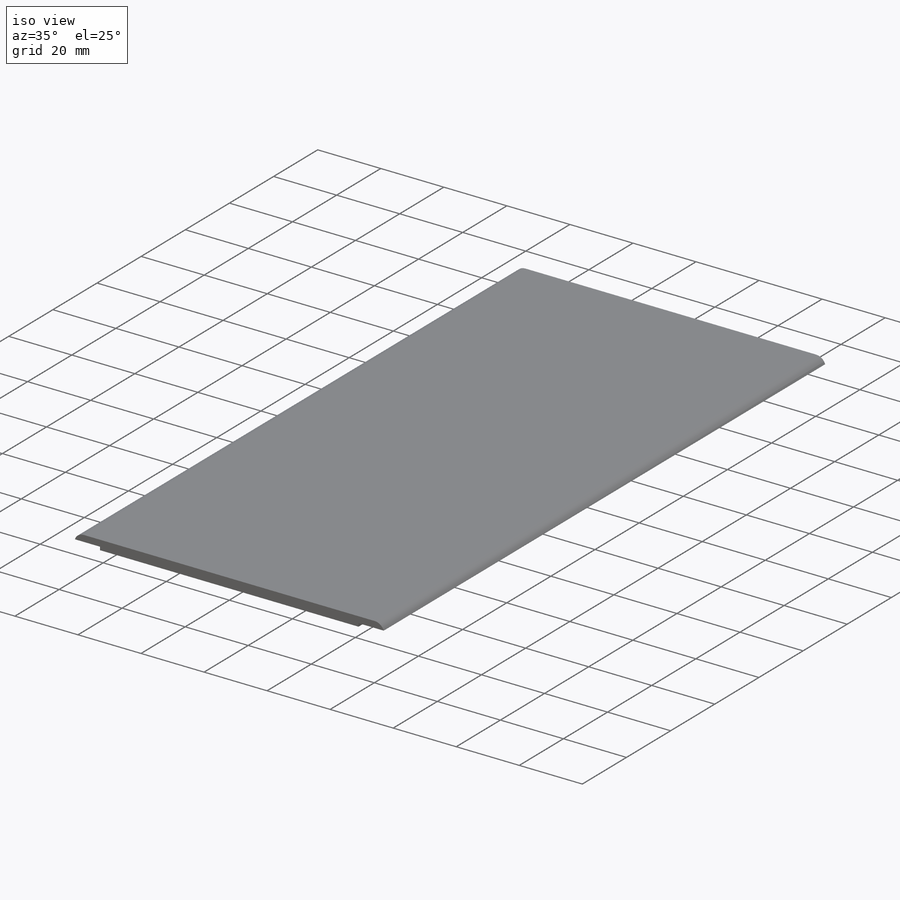
[diagram: iso view]
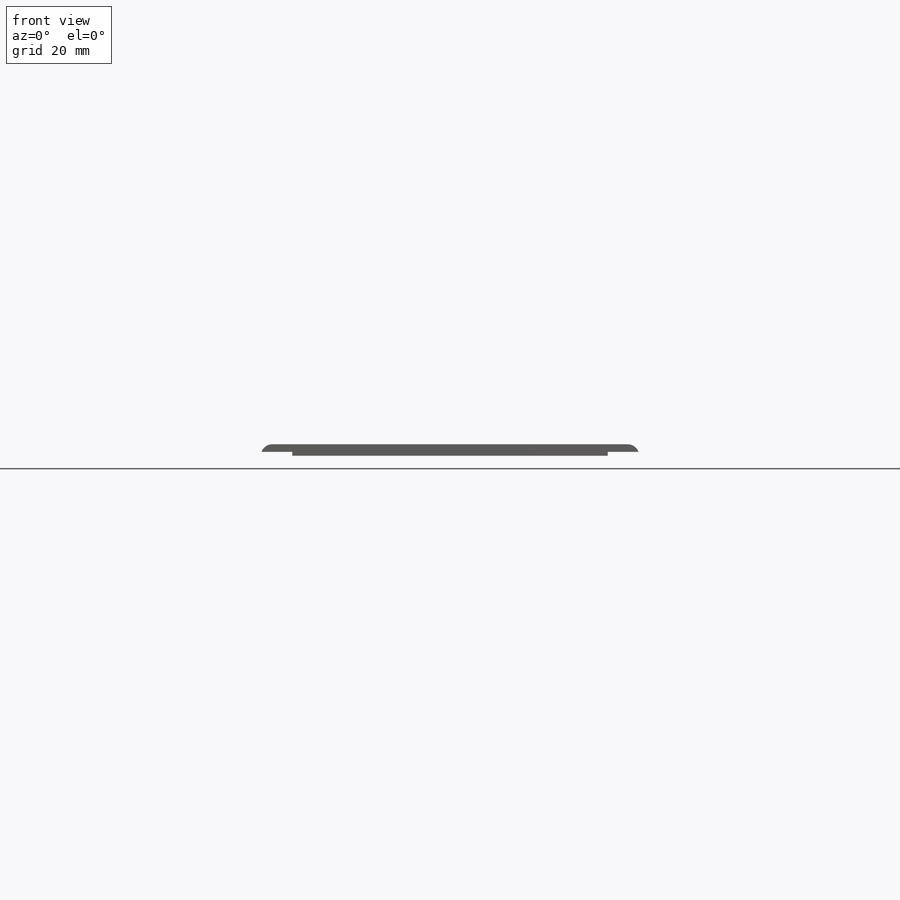
[diagram: front view]
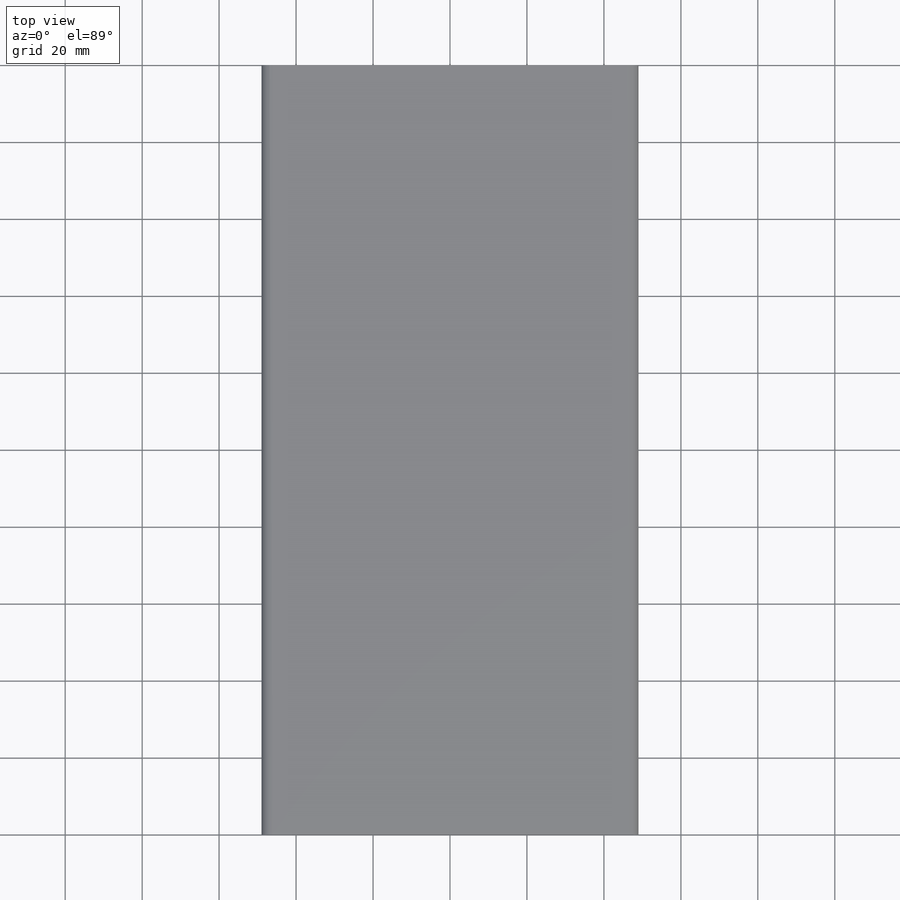
[diagram: top view]
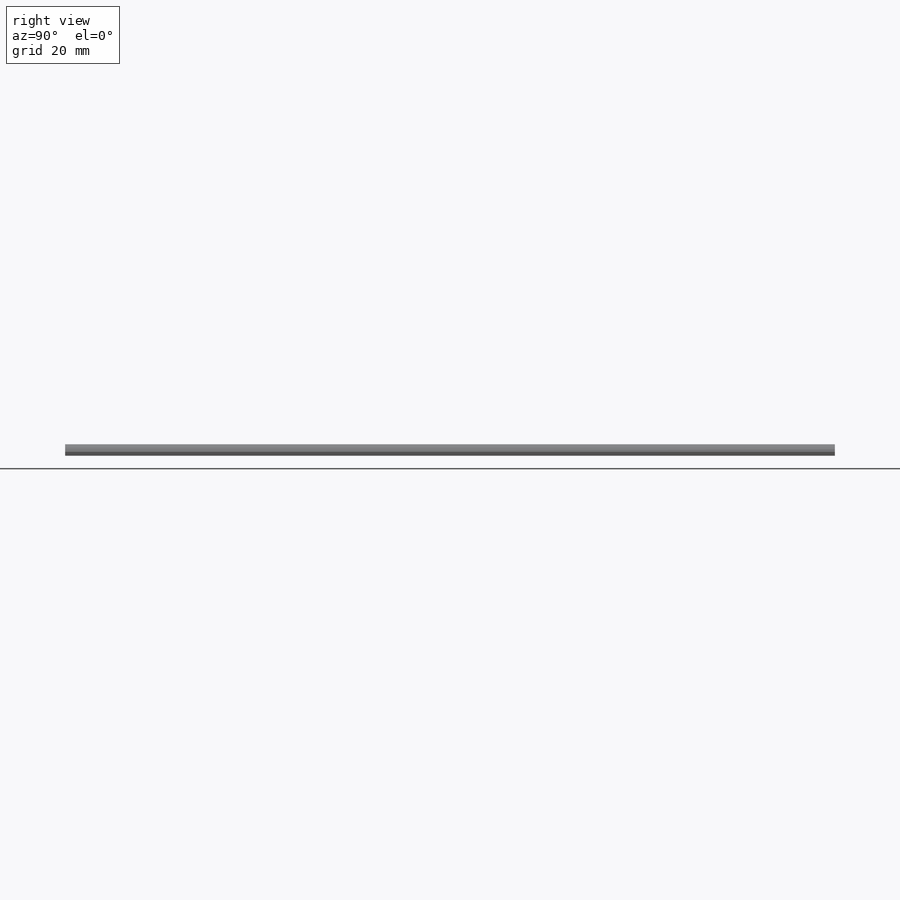
[diagram: right view]
SOLIDWORKS PART (.sldprt)
format: sldprt  version: not decoded by parser v0  size: 181,248 bytes
history: native  units: mm
features: plane x3, sketch x3, cut_extrude x2, fillet x2, material x1, extrude x1 (+9 scaffold rows collapsed)
feature tree (21):
  scaffold x9  (default folders/planes/origin — collapsed)
  material  "Material <nicht festgelegt>"
  plane  "Ebene vorne"
  plane  "Ebene oben"
  plane  "Ebene rechts"
  sketch  "Skizze2"  dims[D1=98.0mm D2=200.0mm]
  extrude  "Aufsatz-Linear austragen2"  Depth=3mm
  sketch  "Skizze4"  dims[D1=8.0mm]
  cut_extrude  "Schnitt-Linear austragen1"  Depth=1mm
  fillet  "Verrundung1"  Radius=3mm
  sketch  "Skizze5"  dims[c1.D1=10.0mm c1.D2=20.0mm c1.D3=21.5mm c1.D4=12.75mm c2.D3=80.75mm c2.D1=80.75mm c2.D2=30.0mm c3.D3=25.0mm]
  cut_extrude  "Schnitt-Linear austragen2"  Depth=2.5mm
  fillet  "Verrundung2"  Radius=5mm
decode coverage: 8 of 8 modeling features carry decoded parameters
note: suppression state not decoded; provenance and decode notes live in map.json
